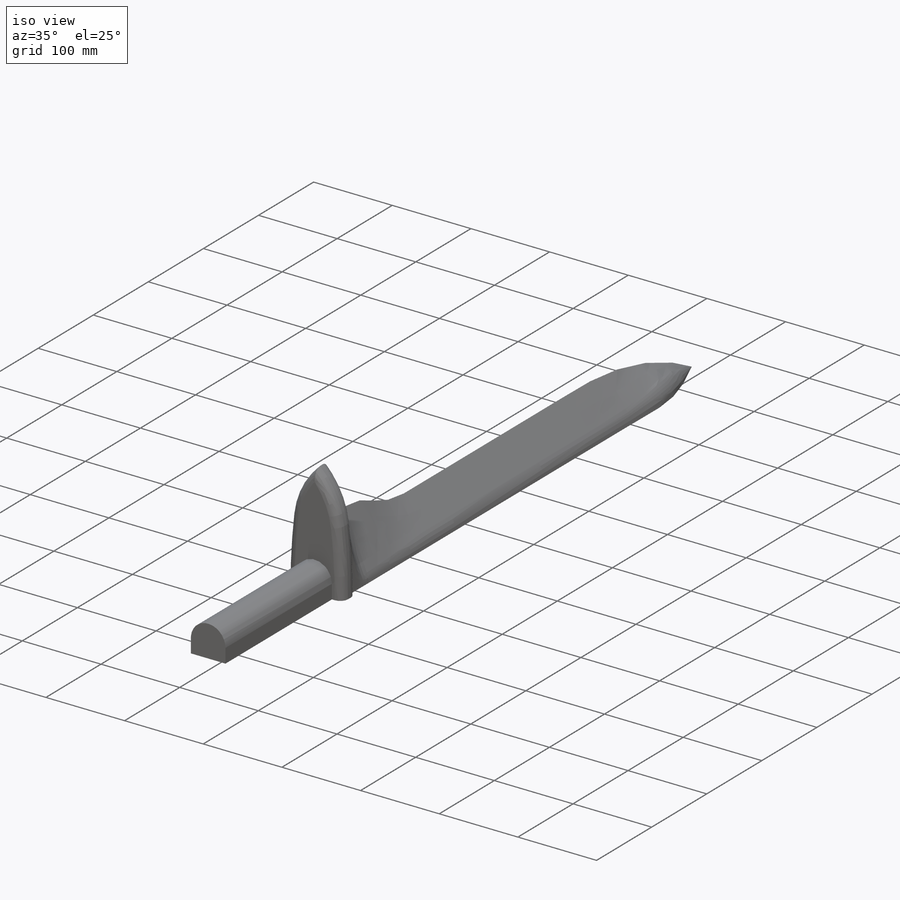
[diagram: iso view]
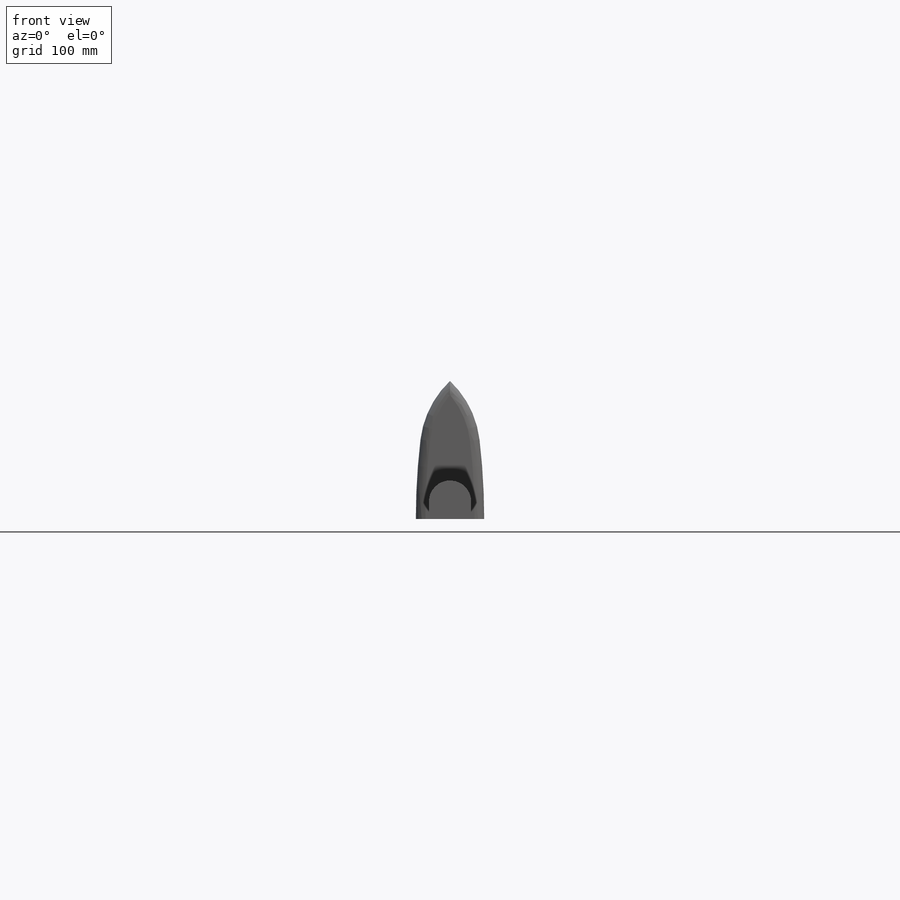
[diagram: front view]
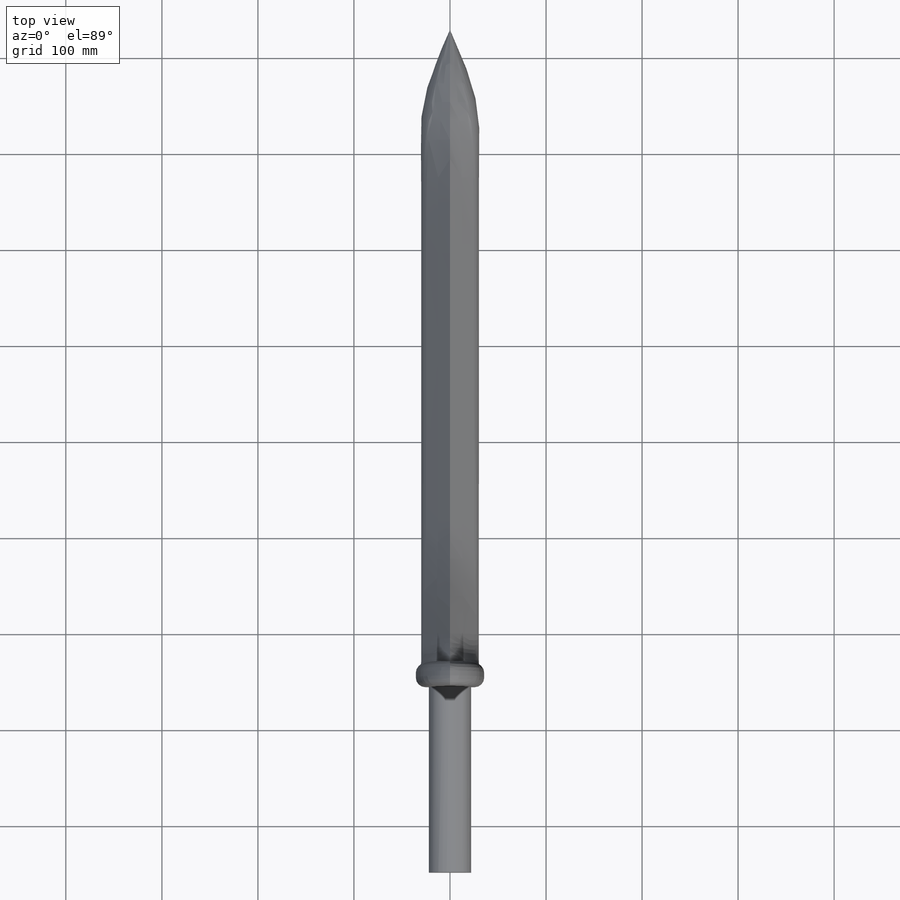
[diagram: top view]
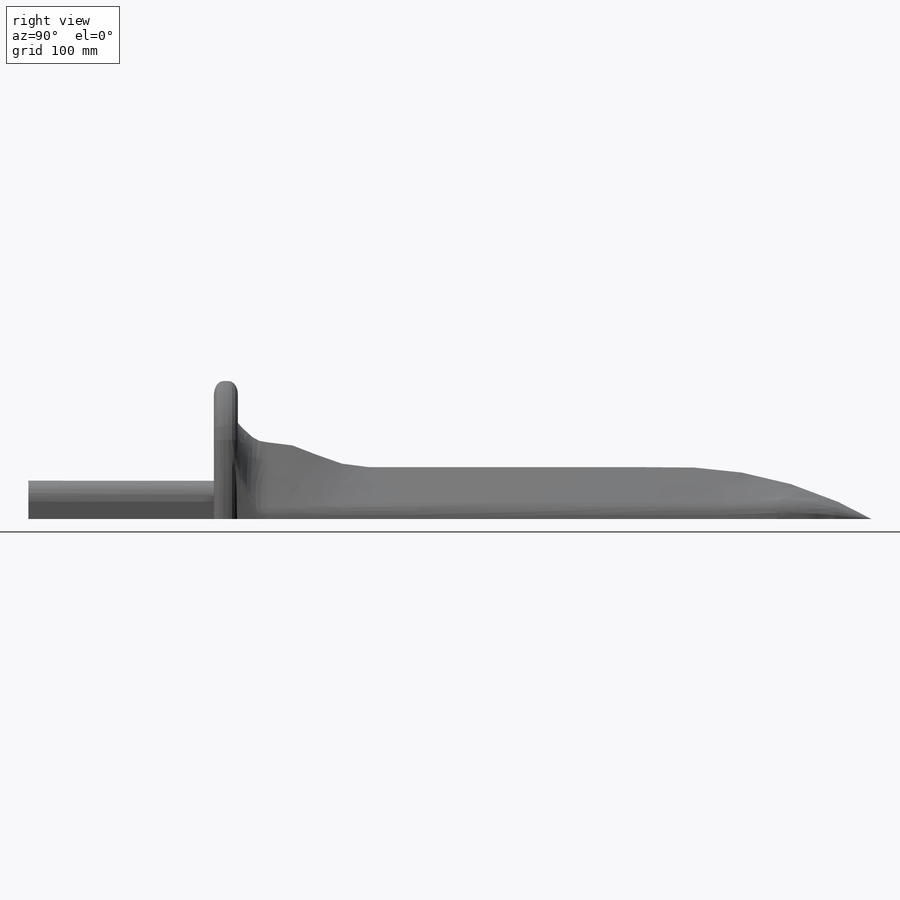
[diagram: right view]
SOLIDWORKS PART (.sldprt)
format: sldprt  version: not decoded by parser v0  size: 427,008 bytes
history: native  units: mm
features: sketch x9, sweep x2, plane x2, material x1, extrude x1, fillet x1 (+12 scaffold rows collapsed)
feature tree (28):
  scaffold x12  (default folders/planes/origin — collapsed)
  material  "Material <not specified>"
  sketch  "Sketch3"  dims[D1=30.0mm D2=80.0mm D3=60.0mm]
  sketch  "Sketch4"  dims[D1=~721.628607mm D2=~280.374507mm D3=~245.116798mm D4=~229.013263mm D5=~443.406291mm D6=55.0mm D7=~110.686576mm D8=~125.937413mm]
  sketch  "Sketch5"
  sweep  "Sweep5"
  plane  "Plane1"  Offset=30mm
  sketch  "Sketch6"
  extrude  "Boss-Extrude1"  Depth=25mm
  sketch  "Sketch7"  dims[D1=0.0mm]
  sketch  "Sketch8"  dims[D1=30.0mm D2=100.0mm D3=45.0mm]
  plane  "Plane2"  Offset=12.5mm
  fillet  "Fillet1"  Radius=10mm
  sketch  "Sketch13"  dims[D1=22.0mm D2=40.0mm D3=18.0mm]
  sketch  "Sketch14"  dims[D1=230.0mm]
  sketch  "Sketch15"  dims[c1.D2=17.0mm c1.D3=~4.52395mm c1.D1=230.0mm c2.D3=40.0mm c2.D4=~17.738322mm c2.D5=~20.325534mm c3.D4=26.0mm]
  sweep  "Sweep7"
decode coverage: 9 of 13 modeling features carry decoded parameters
note: ~ marks probable driven/reference dimensions
note: suppression state not decoded; provenance and decode notes live in map.json
